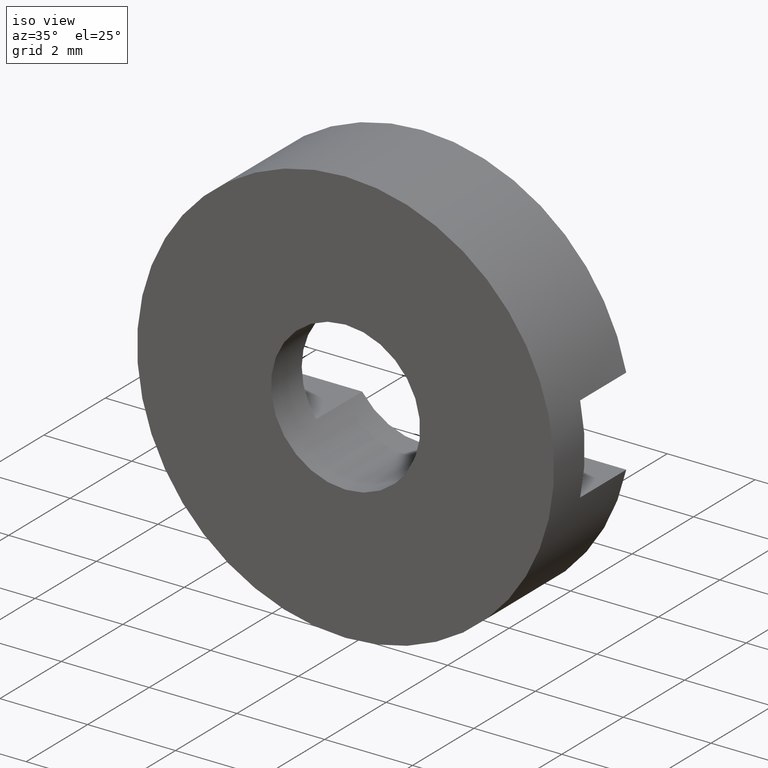
[diagram: clean part render]
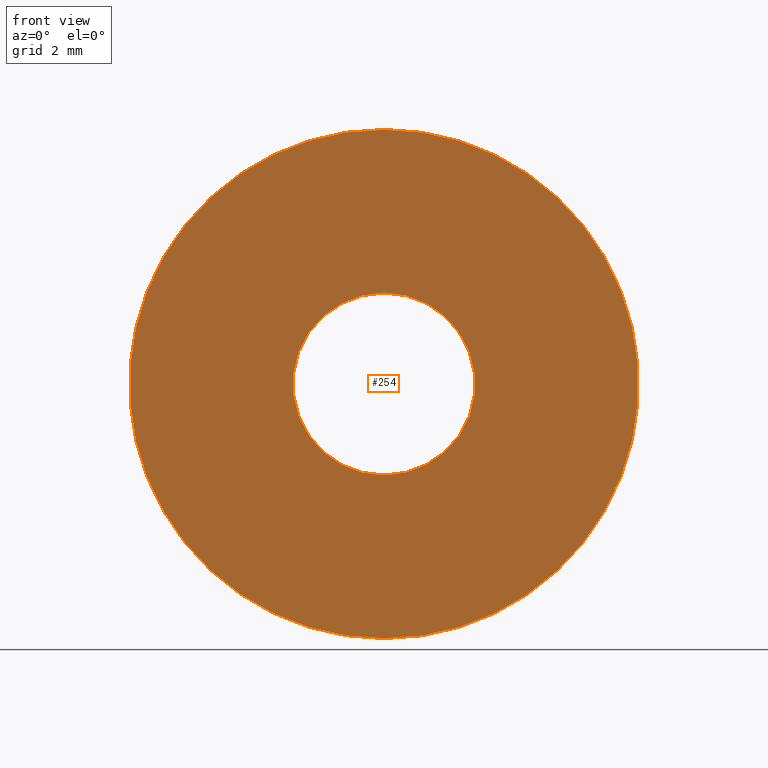
[diagram: tour spotlight — one face highlighted and labeled with its STEP entity id]
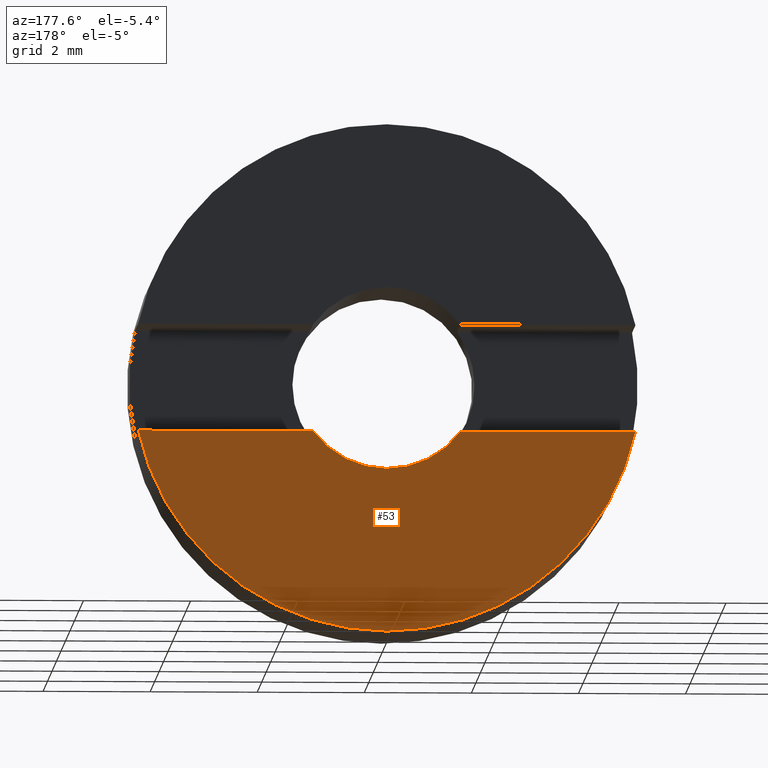
[diagram: tour spotlight — one face highlighted and labeled with its STEP entity id]
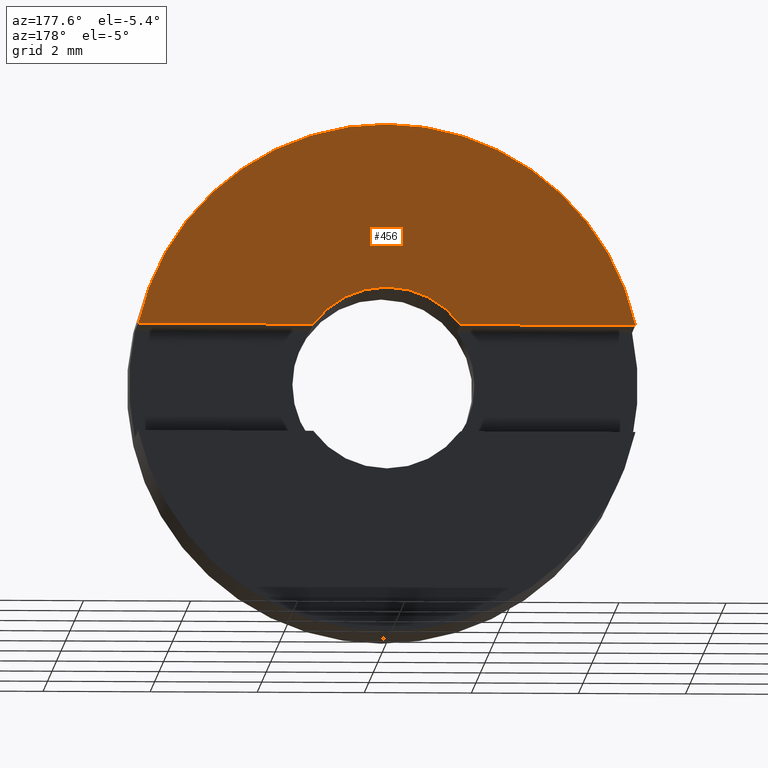
[diagram: tour spotlight — one face highlighted and labeled with its STEP entity id]
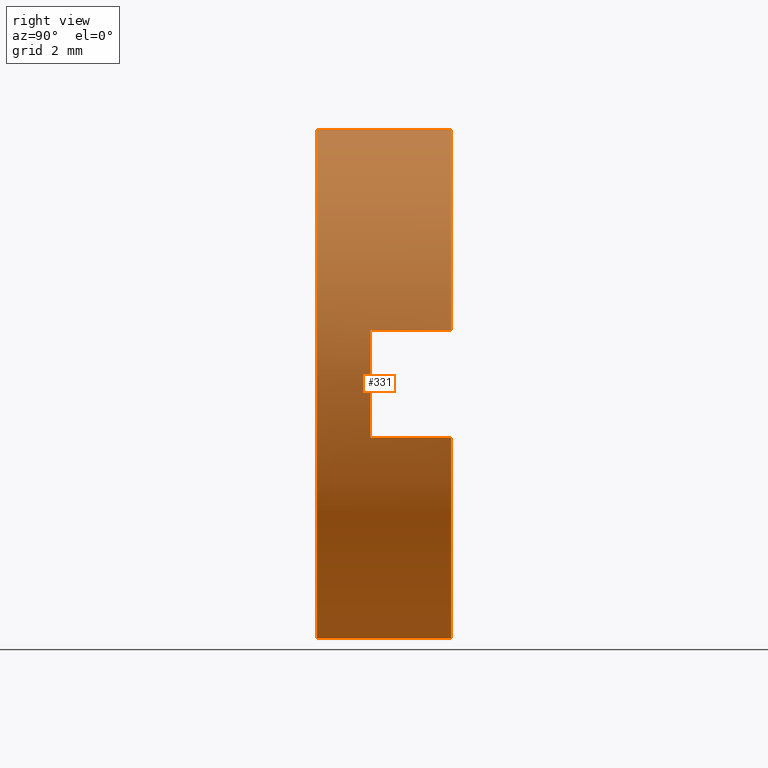
[diagram: tour spotlight — one face highlighted and labeled with its STEP entity id]
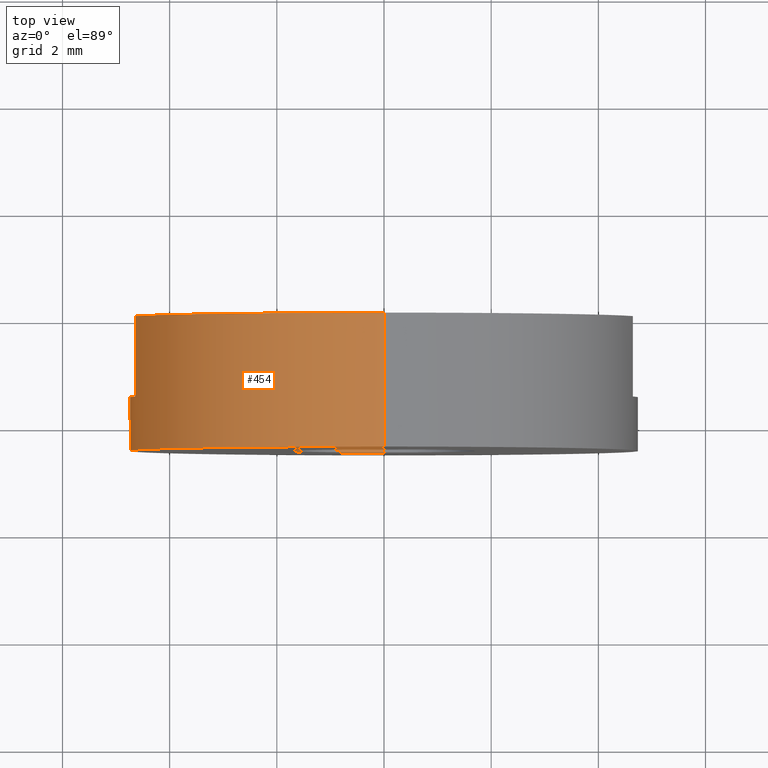
[diagram: tour spotlight — one face highlighted and labeled with its STEP entity id]
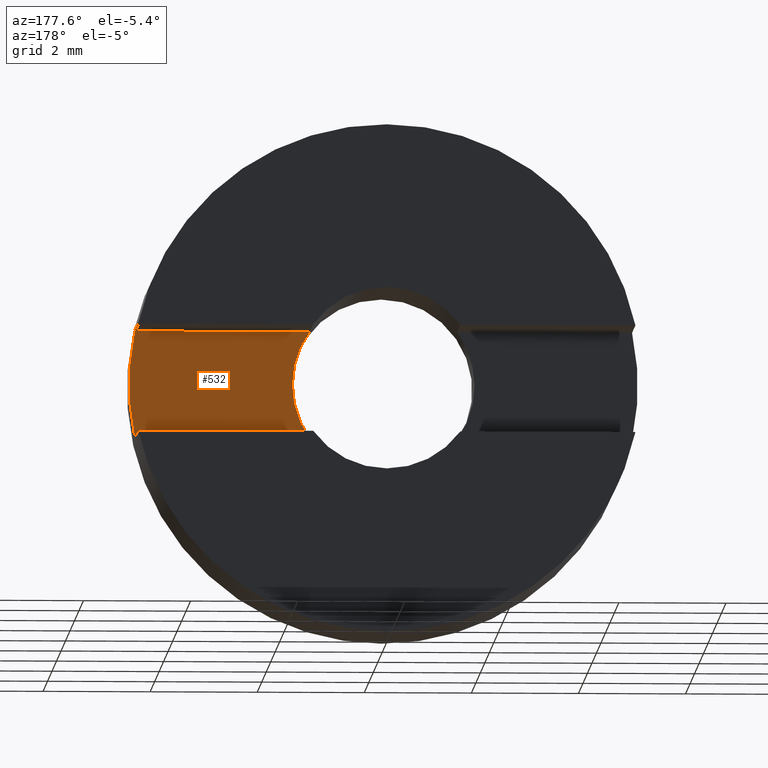
[diagram: tour spotlight — one face highlighted and labeled with its STEP entity id]
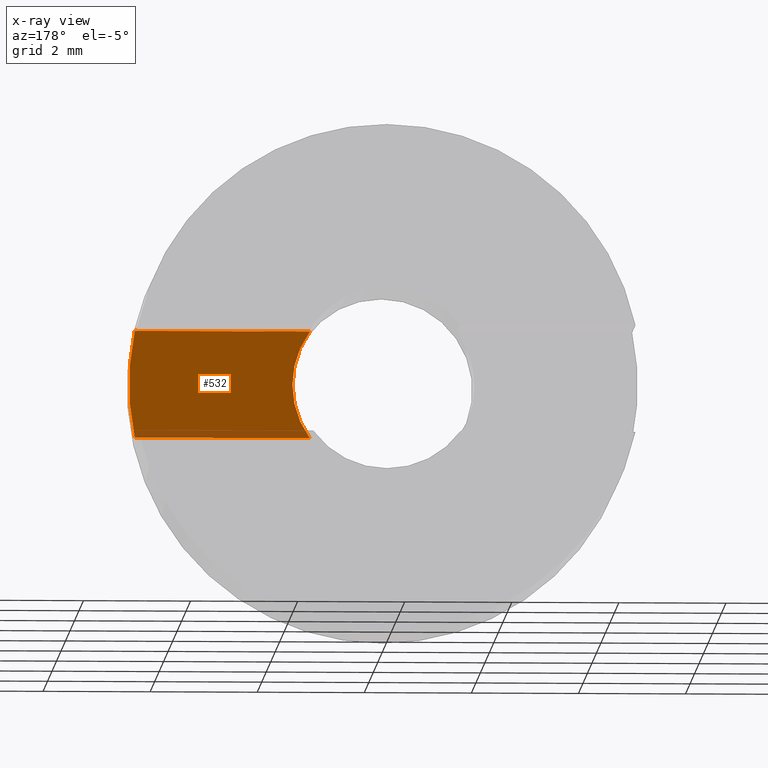
[diagram: x-ray of the same camera — body ghosted, this tour face saturated]
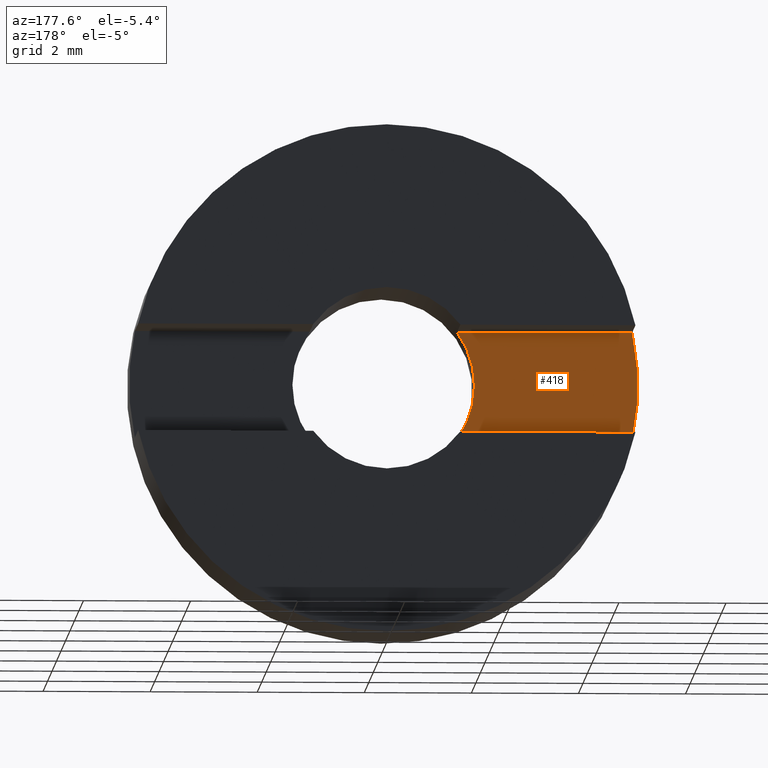
[diagram: tour spotlight — one face highlighted and labeled with its STEP entity id]
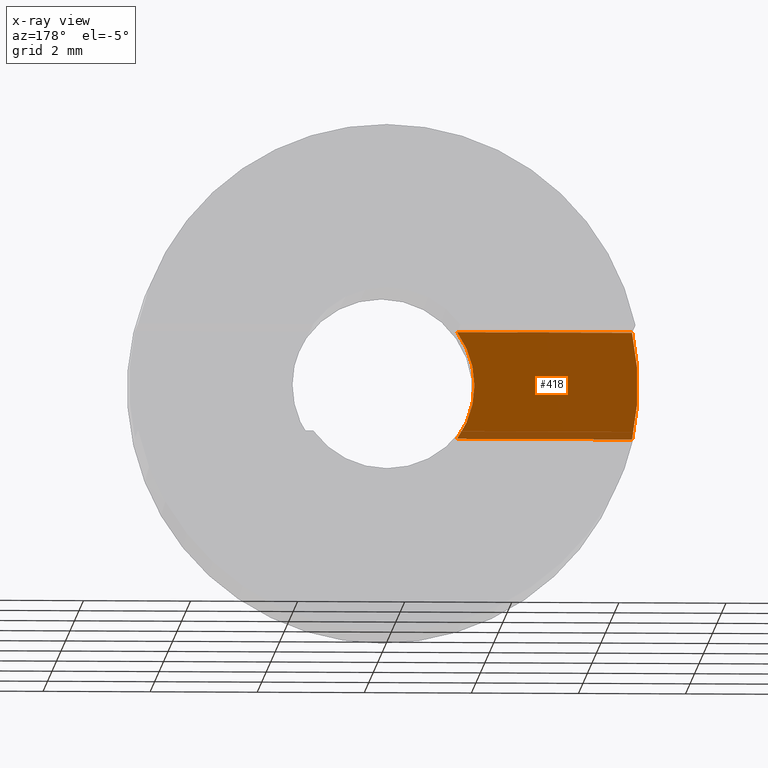
[diagram: x-ray of the same camera — body ghosted, this tour face saturated]
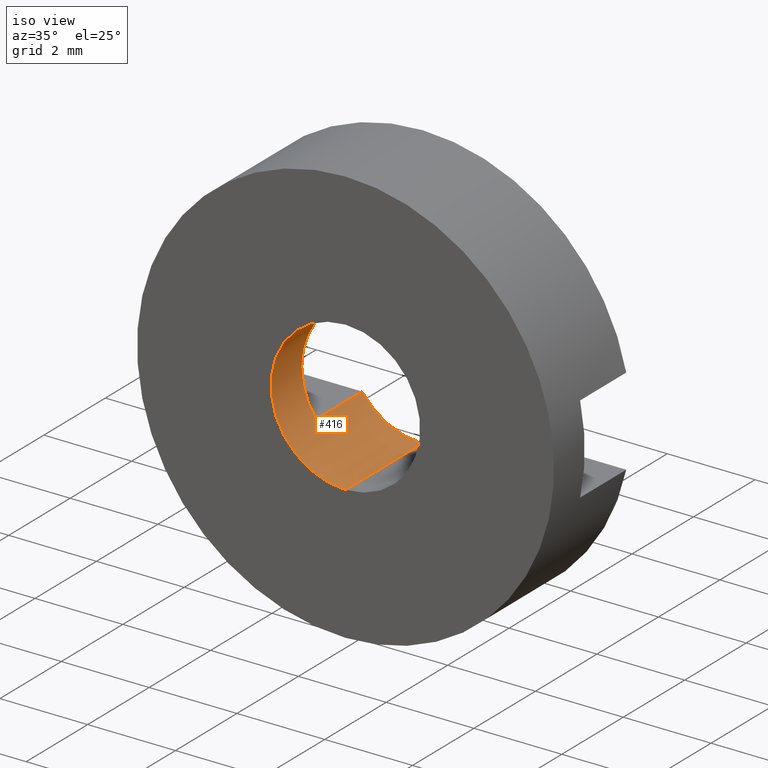
[diagram: tour spotlight — one face highlighted and labeled with its STEP entity id]
A machine part: a face-by-face anatomy tour. The part has 13 B-rep faces; the first image is the clean iso view, then the 8 largest visible faces are spotlighted one at a time (largest first), each with its STEP entity span.

Face 1 — front view, entity #254. In plain terms, the highlighted planar face has unit normal (-0, 1, 0).
Definition (entity closure, byte-faithful):
#9 = AXIS2_PLACEMENT_3D ( 'NONE', #573, #83, #351 ) ;
#31 = AXIS2_PLACEMENT_3D ( 'NONE', #487, #480, #393 ) ;
#75 = CARTESIAN_POINT ( 'NONE',  ( 0.0000000000000000000, -4.464249787179428900, 0.0000000000000000000 ) ) ;
#83 = DIRECTION ( 'NONE',  ( -0.0000000000000000000, 1.000000000000000000, -0.0000000000000000000 ) ) ;
#120 = PLANE ( 'NONE',  #309 ) ;
#126 = VERTEX_POINT ( 'NONE', #432 ) ;
#127 = CARTESIAN_POINT ( 'NONE',  ( 2.081899558550509200E-016, -4.464249787179428900, -1.700000000000007300 ) ) ;
#130 = CIRCLE ( 'NONE', #382, 1.700000000000007300 ) ;
#143 = EDGE_CURVE ( 'NONE', #126, #243, #385, .T. ) ;
#152 = EDGE_CURVE ( 'NONE', #243, #126, #329, .T. ) ;
#153 = ORIENTED_EDGE ( 'NONE', *, *, #143, .F. ) ;
#165 = DIRECTION ( 'NONE',  ( -0.0000000000000000000, 1.000000000000000000, -0.0000000000000000000 ) ) ;
#168 = CARTESIAN_POINT ( 'NONE',  ( 0.0000000000000000000, -4.464249787179428900, 4.750000000000007100 ) ) ;
#193 = VERTEX_POINT ( 'NONE', #127 ) ;
#202 = EDGE_LOOP ( 'NONE', ( #317, #153 ) ) ;
#216 = DIRECTION ( 'NONE',  ( -0.0000000000000000000, 1.000000000000000000, 0.0000000000000000000 ) ) ;
#243 = VERTEX_POINT ( 'NONE', #168 ) ;
#254 = ADVANCED_FACE ( 'NONE', ( #387, #275 ), #120, .F. ) ;
#275 = FACE_BOUND ( 'NONE', #521, .T. ) ;
#280 = ORIENTED_EDGE ( 'NONE', *, *, #522, .T. ) ;
#302 = CARTESIAN_POINT ( 'NONE',  ( 0.0000000000000000000, -4.464249787179428900, 1.700000000000007300 ) ) ;
#307 = VERTEX_POINT ( 'NONE', #302 ) ;
#309 = AXIS2_PLACEMENT_3D ( 'NONE', #483, #216, #531 ) ;
#310 = DIRECTION ( 'NONE',  ( 0.0000000000000000000, 0.0000000000000000000, 1.000000000000000000 ) ) ;
#317 = ORIENTED_EDGE ( 'NONE', *, *, #152, .F. ) ;
#329 = CIRCLE ( 'NONE', #9, 4.750000000000007100 ) ;
#335 = AXIS2_PLACEMENT_3D ( 'NONE', #75, #165, #429 ) ;
#351 = DIRECTION ( 'NONE',  ( 0.0000000000000000000, 0.0000000000000000000, 1.000000000000000000 ) ) ;
#380 = ORIENTED_EDGE ( 'NONE', *, *, #527, .T. ) ;
#382 = AXIS2_PLACEMENT_3D ( 'NONE', #392, #448, #310 ) ;
#385 = CIRCLE ( 'NONE', #335, 4.750000000000007100 ) ;
#387 = FACE_OUTER_BOUND ( 'NONE', #202, .T. ) ;
#392 = CARTESIAN_POINT ( 'NONE',  ( 0.0000000000000000000, -4.464249787179428900, 0.0000000000000000000 ) ) ;
#393 = DIRECTION ( 'NONE',  ( 0.0000000000000000000, 0.0000000000000000000, 1.000000000000000000 ) ) ;
#429 = DIRECTION ( 'NONE',  ( 0.0000000000000000000, 0.0000000000000000000, 1.000000000000000000 ) ) ;
#432 = CARTESIAN_POINT ( 'NONE',  ( 5.817072295949936300E-016, -4.464249787179428900, -4.750000000000007100 ) ) ;
#448 = DIRECTION ( 'NONE',  ( -0.0000000000000000000, 1.000000000000000000, -0.0000000000000000000 ) ) ;
#480 = DIRECTION ( 'NONE',  ( -0.0000000000000000000, 1.000000000000000000, -0.0000000000000000000 ) ) ;
#483 = CARTESIAN_POINT ( 'NONE',  ( 1.700000000000007300, -4.464249787179430700, 0.0000000000000000000 ) ) ;
#487 = CARTESIAN_POINT ( 'NONE',  ( 0.0000000000000000000, -4.464249787179428900, 0.0000000000000000000 ) ) ;
#512 = CIRCLE ( 'NONE', #31, 1.700000000000007300 ) ;
#521 = EDGE_LOOP ( 'NONE', ( #380, #280 ) ) ;
#522 = EDGE_CURVE ( 'NONE', #193, #307, #512, .T. ) ;
#527 = EDGE_CURVE ( 'NONE', #307, #193, #130, .T. ) ;
#531 = DIRECTION ( 'NONE',  ( 0.0000000000000000000, 0.0000000000000000000, 1.000000000000000000 ) ) ;
#573 = CARTESIAN_POINT ( 'NONE',  ( 0.0000000000000000000, -4.464249787179428900, 0.0000000000000000000 ) ) ;

Face 2 — auxiliary view, entity #53. In plain terms, the highlighted planar face has unit normal (0, -1, 0).
Definition (entity closure, byte-faithful):
#10 = VERTEX_POINT ( 'NONE', #476 ) ;
#20 = CARTESIAN_POINT ( 'NONE',  ( -26.85254027261461800, -1.964249787179431300, -1.000000000000000000 ) ) ;
#21 = EDGE_CURVE ( 'NONE', #553, #10, #27, .T. ) ;
#22 = CARTESIAN_POINT ( 'NONE',  ( 2.081899558550509200E-016, -1.964249787179434000, -1.700000000000007300 ) ) ;
#27 = CIRCLE ( 'NONE', #544, 4.750000000000008000 ) ;
#40 = CARTESIAN_POINT ( 'NONE',  ( -26.85254027261461800, -1.964249787179431300, -1.000000000000000000 ) ) ;
#43 = LINE ( 'NONE', #20, #551 ) ;
#46 = DIRECTION ( 'NONE',  ( 0.0000000000000000000, 0.0000000000000000000, 1.000000000000000000 ) ) ;
#53 = ADVANCED_FACE ( 'NONE', ( #312 ), #295, .F. ) ;
#70 = VERTEX_POINT ( 'NONE', #473 ) ;
#73 = VECTOR ( 'NONE', #354, 1000.000000000000000 ) ;
#78 = AXIS2_PLACEMENT_3D ( 'NONE', #438, #264, #46 ) ;
#98 = ORIENTED_EDGE ( 'NONE', *, *, #212, .F. ) ;
#101 = VERTEX_POINT ( 'NONE', #22 ) ;
#114 = EDGE_LOOP ( 'NONE', ( #401, #137, #423, #98, #439, #555 ) ) ;
#137 = ORIENTED_EDGE ( 'NONE', *, *, #289, .T. ) ;
#158 = CARTESIAN_POINT ( 'NONE',  ( 1.700000000000007300, -1.964249787179431300, 0.0000000000000000000 ) ) ;
#189 = AXIS2_PLACEMENT_3D ( 'NONE', #158, #424, #478 ) ;
#212 = EDGE_CURVE ( 'NONE', #101, #70, #348, .T. ) ;
#214 = DIRECTION ( 'NONE',  ( 0.0000000000000000000, 0.0000000000000000000, 1.000000000000000000 ) ) ;
#251 = DIRECTION ( 'NONE',  ( -0.0000000000000000000, 1.000000000000000000, -0.0000000000000000000 ) ) ;
#261 = CIRCLE ( 'NONE', #78, 4.750000000000008000 ) ;
#264 = DIRECTION ( 'NONE',  ( -0.0000000000000000000, 1.000000000000000000, -0.0000000000000000000 ) ) ;
#265 = CARTESIAN_POINT ( 'NONE',  ( 4.643543905251672000, -1.964249787179431300, -1.000000000000000000 ) ) ;
#289 = EDGE_CURVE ( 'NONE', #10, #440, #261, .T. ) ;
#292 = CIRCLE ( 'NONE', #328, 1.700000000000007300 ) ;
#293 = DIRECTION ( 'NONE',  ( 0.0000000000000000000, 0.0000000000000000000, 1.000000000000000000 ) ) ;
#295 = PLANE ( 'NONE',  #189 ) ;
#303 = DIRECTION ( 'NONE',  ( -1.000000000000000000, -0.0000000000000000000, -0.0000000000000000000 ) ) ;
#312 = FACE_OUTER_BOUND ( 'NONE', #114, .T. ) ;
#314 = DIRECTION ( 'NONE',  ( -0.0000000000000000000, 1.000000000000000000, -0.0000000000000000000 ) ) ;
#328 = AXIS2_PLACEMENT_3D ( 'NONE', #443, #314, #450 ) ;
#346 = AXIS2_PLACEMENT_3D ( 'NONE', #537, #576, #214 ) ;
#348 = CIRCLE ( 'NONE', #346, 1.700000000000007300 ) ;
#353 = EDGE_CURVE ( 'NONE', #553, #407, #417, .T. ) ;
#354 = DIRECTION ( 'NONE',  ( -1.000000000000000000, -0.0000000000000000000, -0.0000000000000000000 ) ) ;
#401 = ORIENTED_EDGE ( 'NONE', *, *, #21, .T. ) ;
#407 = VERTEX_POINT ( 'NONE', #446 ) ;
#417 = LINE ( 'NONE', #40, #73 ) ;
#423 = ORIENTED_EDGE ( 'NONE', *, *, #510, .F. ) ;
#424 = DIRECTION ( 'NONE',  ( 0.0000000000000000000, -1.000000000000000000, 0.0000000000000000000 ) ) ;
#438 = CARTESIAN_POINT ( 'NONE',  ( 0.0000000000000000000, -1.964249787179434000, 0.0000000000000000000 ) ) ;
#439 = ORIENTED_EDGE ( 'NONE', *, *, #562, .F. ) ;
#440 = VERTEX_POINT ( 'NONE', #547 ) ;
#443 = CARTESIAN_POINT ( 'NONE',  ( 0.0000000000000000000, -1.964249787179434000, 0.0000000000000000000 ) ) ;
#446 = CARTESIAN_POINT ( 'NONE',  ( 1.374772708486760900, -1.964249787179434000, -0.9999999999999995600 ) ) ;
#450 = DIRECTION ( 'NONE',  ( 0.0000000000000000000, 0.0000000000000000000, 1.000000000000000000 ) ) ;
#473 = CARTESIAN_POINT ( 'NONE',  ( -1.374772708486760900, -1.964249787179434000, -0.9999999999999995600 ) ) ;
#476 = CARTESIAN_POINT ( 'NONE',  ( 5.817072295949937300E-016, -1.964249787179434000, -4.750000000000008000 ) ) ;
#478 = DIRECTION ( 'NONE',  ( 0.0000000000000000000, -0.0000000000000000000, -1.000000000000000000 ) ) ;
#510 = EDGE_CURVE ( 'NONE', #70, #440, #43, .T. ) ;
#524 = CARTESIAN_POINT ( 'NONE',  ( 0.0000000000000000000, -1.964249787179434000, 0.0000000000000000000 ) ) ;
#537 = CARTESIAN_POINT ( 'NONE',  ( 0.0000000000000000000, -1.964249787179434000, 0.0000000000000000000 ) ) ;
#544 = AXIS2_PLACEMENT_3D ( 'NONE', #524, #251, #293 ) ;
#547 = CARTESIAN_POINT ( 'NONE',  ( -4.643543905251693400, -1.964249787179431300, -1.000000000000000000 ) ) ;
#551 = VECTOR ( 'NONE', #303, 1000.000000000000000 ) ;
#553 = VERTEX_POINT ( 'NONE', #265 ) ;
#555 = ORIENTED_EDGE ( 'NONE', *, *, #353, .F. ) ;
#562 = EDGE_CURVE ( 'NONE', #407, #101, #292, .T. ) ;
#576 = DIRECTION ( 'NONE',  ( -0.0000000000000000000, 1.000000000000000000, -0.0000000000000000000 ) ) ;

Face 3 — auxiliary view, entity #456. In plain terms, the highlighted planar face has unit normal (0, -1, 0).
Definition (entity closure, byte-faithful):
#2 = EDGE_CURVE ( 'NONE', #170, #5, #144, .T. ) ;
#5 = VERTEX_POINT ( 'NONE', #381 ) ;
#7 = PLANE ( 'NONE',  #100 ) ;
#39 = CIRCLE ( 'NONE', #471, 1.700000000000007300 ) ;
#66 = CARTESIAN_POINT ( 'NONE',  ( 1.700000000000007300, -1.964249787179431300, 0.0000000000000000000 ) ) ;
#71 = FACE_OUTER_BOUND ( 'NONE', #394, .T. ) ;
#72 = CARTESIAN_POINT ( 'NONE',  ( 0.0000000000000000000, -1.964249787179434000, 0.0000000000000000000 ) ) ;
#100 = AXIS2_PLACEMENT_3D ( 'NONE', #66, #493, #575 ) ;
#128 = AXIS2_PLACEMENT_3D ( 'NONE', #362, #181, #358 ) ;
#140 = DIRECTION ( 'NONE',  ( 1.000000000000000000, 0.0000000000000000000, 0.0000000000000000000 ) ) ;
#144 = CIRCLE ( 'NONE', #267, 4.750000000000008000 ) ;
#160 = CARTESIAN_POINT ( 'NONE',  ( -4.643543905251693400, -1.964249787179431300, 1.000000000000000000 ) ) ;
#163 = VECTOR ( 'NONE', #386, 1000.000000000000000 ) ;
#167 = DIRECTION ( 'NONE',  ( -0.0000000000000000000, 1.000000000000000000, -0.0000000000000000000 ) ) ;
#170 = VERTEX_POINT ( 'NONE', #160 ) ;
#171 = VERTEX_POINT ( 'NONE', #490 ) ;
#181 = DIRECTION ( 'NONE',  ( -0.0000000000000000000, 1.000000000000000000, -0.0000000000000000000 ) ) ;
#198 = EDGE_CURVE ( 'NONE', #170, #256, #211, .T. ) ;
#211 = LINE ( 'NONE', #570, #163 ) ;
#217 = CARTESIAN_POINT ( 'NONE',  ( -1.374772708486760900, -1.964249787179434000, 0.9999999999999995600 ) ) ;
#218 = ORIENTED_EDGE ( 'NONE', *, *, #588, .T. ) ;
#219 = ORIENTED_EDGE ( 'NONE', *, *, #2, .T. ) ;
#222 = VECTOR ( 'NONE', #140, 1000.000000000000000 ) ;
#246 = DIRECTION ( 'NONE',  ( -0.0000000000000000000, 1.000000000000000000, -0.0000000000000000000 ) ) ;
#256 = VERTEX_POINT ( 'NONE', #217 ) ;
#267 = AXIS2_PLACEMENT_3D ( 'NONE', #72, #246, #528 ) ;
#269 = CIRCLE ( 'NONE', #128, 1.700000000000007300 ) ;
#270 = CARTESIAN_POINT ( 'NONE',  ( 0.0000000000000000000, -1.964249787179434000, 0.0000000000000000000 ) ) ;
#271 = DIRECTION ( 'NONE',  ( 0.0000000000000000000, 0.0000000000000000000, 1.000000000000000000 ) ) ;
#278 = CIRCLE ( 'NONE', #279, 4.750000000000008000 ) ;
#279 = AXIS2_PLACEMENT_3D ( 'NONE', #270, #167, #492 ) ;
#285 = ORIENTED_EDGE ( 'NONE', *, *, #322, .F. ) ;
#296 = VERTEX_POINT ( 'NONE', #305 ) ;
#305 = CARTESIAN_POINT ( 'NONE',  ( 4.643543905251672000, -1.964249787179431300, 1.000000000000000000 ) ) ;
#322 = EDGE_CURVE ( 'NONE', #171, #472, #39, .T. ) ;
#358 = DIRECTION ( 'NONE',  ( 0.0000000000000000000, 0.0000000000000000000, 1.000000000000000000 ) ) ;
#362 = CARTESIAN_POINT ( 'NONE',  ( 0.0000000000000000000, -1.964249787179434000, 0.0000000000000000000 ) ) ;
#381 = CARTESIAN_POINT ( 'NONE',  ( 0.0000000000000000000, -1.964249787179434000, 4.750000000000008000 ) ) ;
#386 = DIRECTION ( 'NONE',  ( 1.000000000000000000, 0.0000000000000000000, 0.0000000000000000000 ) ) ;
#394 = EDGE_LOOP ( 'NONE', ( #219, #218, #437, #285, #589, #458 ) ) ;
#406 = DIRECTION ( 'NONE',  ( -0.0000000000000000000, 1.000000000000000000, -0.0000000000000000000 ) ) ;
#437 = ORIENTED_EDGE ( 'NONE', *, *, #571, .F. ) ;
#444 = LINE ( 'NONE', #579, #222 ) ;
#456 = ADVANCED_FACE ( 'NONE', ( #71 ), #7, .F. ) ;
#458 = ORIENTED_EDGE ( 'NONE', *, *, #198, .F. ) ;
#471 = AXIS2_PLACEMENT_3D ( 'NONE', #587, #406, #271 ) ;
#472 = VERTEX_POINT ( 'NONE', #539 ) ;
#490 = CARTESIAN_POINT ( 'NONE',  ( 0.0000000000000000000, -1.964249787179434000, 1.700000000000007300 ) ) ;
#492 = DIRECTION ( 'NONE',  ( 0.0000000000000000000, 0.0000000000000000000, 1.000000000000000000 ) ) ;
#493 = DIRECTION ( 'NONE',  ( 0.0000000000000000000, -1.000000000000000000, 0.0000000000000000000 ) ) ;
#528 = DIRECTION ( 'NONE',  ( 0.0000000000000000000, 0.0000000000000000000, 1.000000000000000000 ) ) ;
#539 = CARTESIAN_POINT ( 'NONE',  ( 1.374772708486760900, -1.964249787179434000, 0.9999999999999995600 ) ) ;
#541 = EDGE_CURVE ( 'NONE', #256, #171, #269, .T. ) ;
#570 = CARTESIAN_POINT ( 'NONE',  ( -26.85254027261461800, -1.964249787179431300, 1.000000000000000000 ) ) ;
#571 = EDGE_CURVE ( 'NONE', #472, #296, #444, .T. ) ;
#575 = DIRECTION ( 'NONE',  ( 0.0000000000000000000, -0.0000000000000000000, -1.000000000000000000 ) ) ;
#579 = CARTESIAN_POINT ( 'NONE',  ( -26.85254027261461800, -1.964249787179431300, 1.000000000000000000 ) ) ;
#587 = CARTESIAN_POINT ( 'NONE',  ( 0.0000000000000000000, -1.964249787179434000, 0.0000000000000000000 ) ) ;
#588 = EDGE_CURVE ( 'NONE', #5, #296, #278, .T. ) ;
#589 = ORIENTED_EDGE ( 'NONE', *, *, #541, .F. ) ;

Face 4 — right view, entity #331. In plain terms, the highlighted cylindrical surface (partial cylindrical patch) has radius 4.75 mm, axis along (-0, 1, -0).
Definition (entity closure, byte-faithful):
#5 = VERTEX_POINT ( 'NONE', #381 ) ;
#9 = AXIS2_PLACEMENT_3D ( 'NONE', #573, #83, #351 ) ;
#10 = VERTEX_POINT ( 'NONE', #476 ) ;
#11 = CARTESIAN_POINT ( 'NONE',  ( 0.0000000000000000000, 56.26084262701361600, 4.750000000000008000 ) ) ;
#14 = DIRECTION ( 'NONE',  ( -0.0000000000000000000, 1.000000000000000000, -0.0000000000000000000 ) ) ;
#21 = EDGE_CURVE ( 'NONE', #553, #10, #27, .T. ) ;
#24 = ORIENTED_EDGE ( 'NONE', *, *, #21, .F. ) ;
#26 = DIRECTION ( 'NONE',  ( -0.0000000000000000000, 1.000000000000000000, -0.0000000000000000000 ) ) ;
#27 = CIRCLE ( 'NONE', #544, 4.750000000000008000 ) ;
#28 = VERTEX_POINT ( 'NONE', #565 ) ;
#36 = CARTESIAN_POINT ( 'NONE',  ( 0.0000000000000000000, 56.26084262701361600, 0.0000000000000000000 ) ) ;
#60 = EDGE_CURVE ( 'NONE', #243, #5, #290, .T. ) ;
#67 = EDGE_CURVE ( 'NONE', #553, #28, #225, .T. ) ;
#77 = CARTESIAN_POINT ( 'NONE',  ( 4.643543905251684500, -3.464249787179428400, 0.9999999999999995600 ) ) ;
#83 = DIRECTION ( 'NONE',  ( -0.0000000000000000000, 1.000000000000000000, -0.0000000000000000000 ) ) ;
#124 = ORIENTED_EDGE ( 'NONE', *, *, #546, .F. ) ;
#126 = VERTEX_POINT ( 'NONE', #432 ) ;
#132 = DIRECTION ( 'NONE',  ( 0.0000000000000000000, 0.0000000000000000000, 1.000000000000000000 ) ) ;
#145 = ORIENTED_EDGE ( 'NONE', *, *, #516, .T. ) ;
#152 = EDGE_CURVE ( 'NONE', #243, #126, #329, .T. ) ;
#159 = ORIENTED_EDGE ( 'NONE', *, *, #588, .F. ) ;
#161 = VECTOR ( 'NONE', #14, 1000.000000000000000 ) ;
#167 = DIRECTION ( 'NONE',  ( -0.0000000000000000000, 1.000000000000000000, -0.0000000000000000000 ) ) ;
#168 = CARTESIAN_POINT ( 'NONE',  ( 0.0000000000000000000, -4.464249787179428900, 4.750000000000007100 ) ) ;
#184 = DIRECTION ( 'NONE',  ( 0.0000000000000000000, 0.0000000000000000000, 1.000000000000000000 ) ) ;
#192 = LINE ( 'NONE', #255, #338 ) ;
#201 = VECTOR ( 'NONE', #266, 1000.000000000000000 ) ;
#203 = CARTESIAN_POINT ( 'NONE',  ( 4.643543905251685400, 56.26084262701361600, -1.000000000000000000 ) ) ;
#225 = LINE ( 'NONE', #203, #286 ) ;
#231 = DIRECTION ( 'NONE',  ( 0.0000000000000000000, 1.000000000000000000, 0.0000000000000000000 ) ) ;
#240 = LINE ( 'NONE', #359, #201 ) ;
#243 = VERTEX_POINT ( 'NONE', #168 ) ;
#248 = AXIS2_PLACEMENT_3D ( 'NONE', #501, #231, #132 ) ;
#251 = DIRECTION ( 'NONE',  ( -0.0000000000000000000, 1.000000000000000000, -0.0000000000000000000 ) ) ;
#255 = CARTESIAN_POINT ( 'NONE',  ( 4.643543905251685400, 56.26084262701361600, 1.000000000000000000 ) ) ;
#265 = CARTESIAN_POINT ( 'NONE',  ( 4.643543905251672000, -1.964249787179431300, -1.000000000000000000 ) ) ;
#266 = DIRECTION ( 'NONE',  ( -0.0000000000000000000, 1.000000000000000000, -0.0000000000000000000 ) ) ;
#270 = CARTESIAN_POINT ( 'NONE',  ( 0.0000000000000000000, -1.964249787179434000, 0.0000000000000000000 ) ) ;
#272 = VERTEX_POINT ( 'NONE', #77 ) ;
#278 = CIRCLE ( 'NONE', #279, 4.750000000000008000 ) ;
#279 = AXIS2_PLACEMENT_3D ( 'NONE', #270, #167, #492 ) ;
#286 = VECTOR ( 'NONE', #564, 1000.000000000000000 ) ;
#290 = LINE ( 'NONE', #11, #161 ) ;
#293 = DIRECTION ( 'NONE',  ( 0.0000000000000000000, 0.0000000000000000000, 1.000000000000000000 ) ) ;
#296 = VERTEX_POINT ( 'NONE', #305 ) ;
#300 = ORIENTED_EDGE ( 'NONE', *, *, #378, .T. ) ;
#301 = ORIENTED_EDGE ( 'NONE', *, *, #60, .F. ) ;
#305 = CARTESIAN_POINT ( 'NONE',  ( 4.643543905251672000, -1.964249787179431300, 1.000000000000000000 ) ) ;
#329 = CIRCLE ( 'NONE', #9, 4.750000000000007100 ) ;
#331 = ADVANCED_FACE ( 'NONE', ( #372 ), #484, .T. ) ;
#338 = VECTOR ( 'NONE', #26, 1000.000000000000000 ) ;
#342 = EDGE_LOOP ( 'NONE', ( #449, #300, #24, #345, #124, #145, #159, #301 ) ) ;
#345 = ORIENTED_EDGE ( 'NONE', *, *, #67, .T. ) ;
#351 = DIRECTION ( 'NONE',  ( 0.0000000000000000000, 0.0000000000000000000, 1.000000000000000000 ) ) ;
#356 = DIRECTION ( 'NONE',  ( -0.0000000000000000000, 1.000000000000000000, -0.0000000000000000000 ) ) ;
#359 = CARTESIAN_POINT ( 'NONE',  ( 5.817072295949937300E-016, 56.26084262701361600, -4.750000000000008000 ) ) ;
#372 = FACE_OUTER_BOUND ( 'NONE', #342, .T. ) ;
#378 = EDGE_CURVE ( 'NONE', #126, #10, #240, .T. ) ;
#381 = CARTESIAN_POINT ( 'NONE',  ( 0.0000000000000000000, -1.964249787179434000, 4.750000000000008000 ) ) ;
#432 = CARTESIAN_POINT ( 'NONE',  ( 5.817072295949936300E-016, -4.464249787179428900, -4.750000000000007100 ) ) ;
#433 = CIRCLE ( 'NONE', #248, 4.750000000000008000 ) ;
#449 = ORIENTED_EDGE ( 'NONE', *, *, #152, .T. ) ;
#476 = CARTESIAN_POINT ( 'NONE',  ( 5.817072295949937300E-016, -1.964249787179434000, -4.750000000000008000 ) ) ;
#484 = CYLINDRICAL_SURFACE ( 'NONE', #506, 4.750000000000008000 ) ;
#492 = DIRECTION ( 'NONE',  ( 0.0000000000000000000, 0.0000000000000000000, 1.000000000000000000 ) ) ;
#501 = CARTESIAN_POINT ( 'NONE',  ( 0.0000000000000000000, -3.464249787179428400, 0.0000000000000000000 ) ) ;
#506 = AXIS2_PLACEMENT_3D ( 'NONE', #36, #356, #184 ) ;
#516 = EDGE_CURVE ( 'NONE', #272, #296, #192, .T. ) ;
#524 = CARTESIAN_POINT ( 'NONE',  ( 0.0000000000000000000, -1.964249787179434000, 0.0000000000000000000 ) ) ;
#544 = AXIS2_PLACEMENT_3D ( 'NONE', #524, #251, #293 ) ;
#546 = EDGE_CURVE ( 'NONE', #272, #28, #433, .T. ) ;
#553 = VERTEX_POINT ( 'NONE', #265 ) ;
#564 = DIRECTION ( 'NONE',  ( 0.0000000000000000000, -1.000000000000000000, 0.0000000000000000000 ) ) ;
#565 = CARTESIAN_POINT ( 'NONE',  ( 4.643543905251684500, -3.464249787179428400, -0.9999999999999995600 ) ) ;
#573 = CARTESIAN_POINT ( 'NONE',  ( 0.0000000000000000000, -4.464249787179428900, 0.0000000000000000000 ) ) ;
#588 = EDGE_CURVE ( 'NONE', #5, #296, #278, .T. ) ;

Face 5 — top view, entity #454. In plain terms, the highlighted cylindrical surface (partial cylindrical patch) has radius 4.75 mm, axis along (-0, 1, -0).
Definition (entity closure, byte-faithful):
#2 = EDGE_CURVE ( 'NONE', #170, #5, #144, .T. ) ;
#5 = VERTEX_POINT ( 'NONE', #381 ) ;
#10 = VERTEX_POINT ( 'NONE', #476 ) ;
#11 = CARTESIAN_POINT ( 'NONE',  ( 0.0000000000000000000, 56.26084262701361600, 4.750000000000008000 ) ) ;
#14 = DIRECTION ( 'NONE',  ( -0.0000000000000000000, 1.000000000000000000, -0.0000000000000000000 ) ) ;
#15 = AXIS2_PLACEMENT_3D ( 'NONE', #86, #182, #330 ) ;
#18 = ORIENTED_EDGE ( 'NONE', *, *, #289, .F. ) ;
#19 = EDGE_CURVE ( 'NONE', #195, #440, #503, .T. ) ;
#46 = DIRECTION ( 'NONE',  ( 0.0000000000000000000, 0.0000000000000000000, 1.000000000000000000 ) ) ;
#60 = EDGE_CURVE ( 'NONE', #243, #5, #290, .T. ) ;
#68 = AXIS2_PLACEMENT_3D ( 'NONE', #395, #172, #580 ) ;
#72 = CARTESIAN_POINT ( 'NONE',  ( 0.0000000000000000000, -1.964249787179434000, 0.0000000000000000000 ) ) ;
#74 = ORIENTED_EDGE ( 'NONE', *, *, #19, .T. ) ;
#75 = CARTESIAN_POINT ( 'NONE',  ( 0.0000000000000000000, -4.464249787179428900, 0.0000000000000000000 ) ) ;
#78 = AXIS2_PLACEMENT_3D ( 'NONE', #438, #264, #46 ) ;
#86 = CARTESIAN_POINT ( 'NONE',  ( 0.0000000000000000000, 56.26084262701361600, 0.0000000000000000000 ) ) ;
#109 = ORIENTED_EDGE ( 'NONE', *, *, #414, .F. ) ;
#126 = VERTEX_POINT ( 'NONE', #432 ) ;
#143 = EDGE_CURVE ( 'NONE', #126, #243, #385, .T. ) ;
#144 = CIRCLE ( 'NONE', #267, 4.750000000000008000 ) ;
#160 = CARTESIAN_POINT ( 'NONE',  ( -4.643543905251693400, -1.964249787179431300, 1.000000000000000000 ) ) ;
#161 = VECTOR ( 'NONE', #14, 1000.000000000000000 ) ;
#165 = DIRECTION ( 'NONE',  ( -0.0000000000000000000, 1.000000000000000000, -0.0000000000000000000 ) ) ;
#168 = CARTESIAN_POINT ( 'NONE',  ( 0.0000000000000000000, -4.464249787179428900, 4.750000000000007100 ) ) ;
#170 = VERTEX_POINT ( 'NONE', #160 ) ;
#172 = DIRECTION ( 'NONE',  ( 0.0000000000000000000, 1.000000000000000000, 0.0000000000000000000 ) ) ;
#182 = DIRECTION ( 'NONE',  ( -0.0000000000000000000, 1.000000000000000000, -0.0000000000000000000 ) ) ;
#187 = LINE ( 'NONE', #427, #463 ) ;
#195 = VERTEX_POINT ( 'NONE', #308 ) ;
#201 = VECTOR ( 'NONE', #266, 1000.000000000000000 ) ;
#208 = FACE_OUTER_BOUND ( 'NONE', #428, .T. ) ;
#228 = VERTEX_POINT ( 'NONE', #306 ) ;
#240 = LINE ( 'NONE', #359, #201 ) ;
#243 = VERTEX_POINT ( 'NONE', #168 ) ;
#246 = DIRECTION ( 'NONE',  ( -0.0000000000000000000, 1.000000000000000000, -0.0000000000000000000 ) ) ;
#257 = VECTOR ( 'NONE', #520, 1000.000000000000000 ) ;
#261 = CIRCLE ( 'NONE', #78, 4.750000000000008000 ) ;
#264 = DIRECTION ( 'NONE',  ( -0.0000000000000000000, 1.000000000000000000, -0.0000000000000000000 ) ) ;
#266 = DIRECTION ( 'NONE',  ( -0.0000000000000000000, 1.000000000000000000, -0.0000000000000000000 ) ) ;
#267 = AXIS2_PLACEMENT_3D ( 'NONE', #72, #246, #528 ) ;
#287 = ORIENTED_EDGE ( 'NONE', *, *, #143, .T. ) ;
#289 = EDGE_CURVE ( 'NONE', #10, #440, #261, .T. ) ;
#290 = LINE ( 'NONE', #11, #161 ) ;
#306 = CARTESIAN_POINT ( 'NONE',  ( -4.643543905251684500, -3.464249787179428400, 0.9999999999999995600 ) ) ;
#308 = CARTESIAN_POINT ( 'NONE',  ( -4.643543905251684500, -3.464249787179428400, -0.9999999999999995600 ) ) ;
#319 = ORIENTED_EDGE ( 'NONE', *, *, #2, .F. ) ;
#330 = DIRECTION ( 'NONE',  ( 0.0000000000000000000, 0.0000000000000000000, 1.000000000000000000 ) ) ;
#335 = AXIS2_PLACEMENT_3D ( 'NONE', #75, #165, #429 ) ;
#340 = ORIENTED_EDGE ( 'NONE', *, *, #378, .F. ) ;
#359 = CARTESIAN_POINT ( 'NONE',  ( 5.817072295949937300E-016, 56.26084262701361600, -4.750000000000008000 ) ) ;
#378 = EDGE_CURVE ( 'NONE', #126, #10, #240, .T. ) ;
#381 = CARTESIAN_POINT ( 'NONE',  ( 0.0000000000000000000, -1.964249787179434000, 4.750000000000008000 ) ) ;
#384 = CIRCLE ( 'NONE', #68, 4.750000000000008000 ) ;
#385 = CIRCLE ( 'NONE', #335, 4.750000000000007100 ) ;
#395 = CARTESIAN_POINT ( 'NONE',  ( 0.0000000000000000000, -3.464249787179428400, 0.0000000000000000000 ) ) ;
#396 = ORIENTED_EDGE ( 'NONE', *, *, #60, .T. ) ;
#414 = EDGE_CURVE ( 'NONE', #195, #228, #384, .T. ) ;
#427 = CARTESIAN_POINT ( 'NONE',  ( -4.643543905251685400, 56.26084262701361600, 1.000000000000000000 ) ) ;
#428 = EDGE_LOOP ( 'NONE', ( #340, #287, #396, #319, #530, #109, #74, #18 ) ) ;
#429 = DIRECTION ( 'NONE',  ( 0.0000000000000000000, 0.0000000000000000000, 1.000000000000000000 ) ) ;
#432 = CARTESIAN_POINT ( 'NONE',  ( 5.817072295949936300E-016, -4.464249787179428900, -4.750000000000007100 ) ) ;
#438 = CARTESIAN_POINT ( 'NONE',  ( 0.0000000000000000000, -1.964249787179434000, 0.0000000000000000000 ) ) ;
#440 = VERTEX_POINT ( 'NONE', #547 ) ;
#454 = ADVANCED_FACE ( 'NONE', ( #208 ), #567, .T. ) ;
#463 = VECTOR ( 'NONE', #574, 1000.000000000000000 ) ;
#476 = CARTESIAN_POINT ( 'NONE',  ( 5.817072295949937300E-016, -1.964249787179434000, -4.750000000000008000 ) ) ;
#503 = LINE ( 'NONE', #517, #257 ) ;
#517 = CARTESIAN_POINT ( 'NONE',  ( -4.643543905251685400, 56.26084262701361600, -1.000000000000000000 ) ) ;
#520 = DIRECTION ( 'NONE',  ( -0.0000000000000000000, 1.000000000000000000, -0.0000000000000000000 ) ) ;
#525 = EDGE_CURVE ( 'NONE', #170, #228, #187, .T. ) ;
#528 = DIRECTION ( 'NONE',  ( 0.0000000000000000000, 0.0000000000000000000, 1.000000000000000000 ) ) ;
#530 = ORIENTED_EDGE ( 'NONE', *, *, #525, .T. ) ;
#547 = CARTESIAN_POINT ( 'NONE',  ( -4.643543905251693400, -1.964249787179431300, -1.000000000000000000 ) ) ;
#567 = CYLINDRICAL_SURFACE ( 'NONE', #15, 4.750000000000008000 ) ;
#574 = DIRECTION ( 'NONE',  ( 0.0000000000000000000, -1.000000000000000000, 0.0000000000000000000 ) ) ;
#580 = DIRECTION ( 'NONE',  ( 0.0000000000000000000, 0.0000000000000000000, 1.000000000000000000 ) ) ;

Face 6 — auxiliary view, entity #532. An x-ray twin of the same camera follows (body ghosted, this face saturated) — the face is partly hidden behind the body. In plain terms, the highlighted planar face has unit normal (0, 1, 0).
Definition (entity closure, byte-faithful):
#16 = EDGE_CURVE ( 'NONE', #545, #57, #154, .T. ) ;
#28 = VERTEX_POINT ( 'NONE', #565 ) ;
#30 = CARTESIAN_POINT ( 'NONE',  ( -26.85254027261461800, -3.464249787179431600, 1.000000000000000000 ) ) ;
#42 = DIRECTION ( 'NONE',  ( 0.0000000000000000000, 1.000000000000000000, 0.0000000000000000000 ) ) ;
#44 = PLANE ( 'NONE',  #409 ) ;
#57 = VERTEX_POINT ( 'NONE', #568 ) ;
#58 = AXIS2_PLACEMENT_3D ( 'NONE', #119, #481, #209 ) ;
#62 = EDGE_CURVE ( 'NONE', #28, #545, #498, .T. ) ;
#77 = CARTESIAN_POINT ( 'NONE',  ( 4.643543905251684500, -3.464249787179428400, 0.9999999999999995600 ) ) ;
#90 = DIRECTION ( 'NONE',  ( 0.0000000000000000000, -0.0000000000000000000, 1.000000000000000000 ) ) ;
#111 = EDGE_CURVE ( 'NONE', #57, #272, #238, .T. ) ;
#119 = CARTESIAN_POINT ( 'NONE',  ( 0.0000000000000000000, -3.464249787179428400, 0.0000000000000000000 ) ) ;
#132 = DIRECTION ( 'NONE',  ( 0.0000000000000000000, 0.0000000000000000000, 1.000000000000000000 ) ) ;
#133 = ORIENTED_EDGE ( 'NONE', *, *, #62, .T. ) ;
#154 = CIRCLE ( 'NONE', #58, 1.700000000000007300 ) ;
#156 = FACE_OUTER_BOUND ( 'NONE', #205, .T. ) ;
#157 = ORIENTED_EDGE ( 'NONE', *, *, #111, .T. ) ;
#197 = VECTOR ( 'NONE', #343, 1000.000000000000000 ) ;
#205 = EDGE_LOOP ( 'NONE', ( #441, #133, #336, #157 ) ) ;
#209 = DIRECTION ( 'NONE',  ( 0.0000000000000000000, 0.0000000000000000000, 1.000000000000000000 ) ) ;
#231 = DIRECTION ( 'NONE',  ( 0.0000000000000000000, 1.000000000000000000, 0.0000000000000000000 ) ) ;
#238 = LINE ( 'NONE', #30, #197 ) ;
#248 = AXIS2_PLACEMENT_3D ( 'NONE', #501, #231, #132 ) ;
#272 = VERTEX_POINT ( 'NONE', #77 ) ;
#273 = CARTESIAN_POINT ( 'NONE',  ( 0.0000000000000000000, -3.464249787179431600, 0.0000000000000000000 ) ) ;
#299 = CARTESIAN_POINT ( 'NONE',  ( -26.85254027261461800, -3.464249787179431600, -1.000000000000000000 ) ) ;
#336 = ORIENTED_EDGE ( 'NONE', *, *, #16, .T. ) ;
#343 = DIRECTION ( 'NONE',  ( 1.000000000000000000, 0.0000000000000000000, 0.0000000000000000000 ) ) ;
#375 = DIRECTION ( 'NONE',  ( -1.000000000000000000, -0.0000000000000000000, -0.0000000000000000000 ) ) ;
#388 = CARTESIAN_POINT ( 'NONE',  ( 1.374772708486760900, -3.464249787179428400, -0.9999999999999995600 ) ) ;
#404 = VECTOR ( 'NONE', #375, 1000.000000000000000 ) ;
#409 = AXIS2_PLACEMENT_3D ( 'NONE', #273, #42, #90 ) ;
#433 = CIRCLE ( 'NONE', #248, 4.750000000000008000 ) ;
#441 = ORIENTED_EDGE ( 'NONE', *, *, #546, .T. ) ;
#481 = DIRECTION ( 'NONE',  ( -0.0000000000000000000, -1.000000000000000000, -0.0000000000000000000 ) ) ;
#498 = LINE ( 'NONE', #299, #404 ) ;
#501 = CARTESIAN_POINT ( 'NONE',  ( 0.0000000000000000000, -3.464249787179428400, 0.0000000000000000000 ) ) ;
#532 = ADVANCED_FACE ( 'NONE', ( #156 ), #44, .T. ) ;
#545 = VERTEX_POINT ( 'NONE', #388 ) ;
#546 = EDGE_CURVE ( 'NONE', #272, #28, #433, .T. ) ;
#565 = CARTESIAN_POINT ( 'NONE',  ( 4.643543905251684500, -3.464249787179428400, -0.9999999999999995600 ) ) ;
#568 = CARTESIAN_POINT ( 'NONE',  ( 1.374772708486760900, -3.464249787179428400, 0.9999999999999995600 ) ) ;

Face 7 — auxiliary view, entity #418. An x-ray twin of the same camera follows (body ghosted, this face saturated) — the face is partly hidden behind the body. In plain terms, the highlighted planar face has unit normal (0, 1, 0).
Definition (entity closure, byte-faithful):
#59 = ORIENTED_EDGE ( 'NONE', *, *, #477, .T. ) ;
#68 = AXIS2_PLACEMENT_3D ( 'NONE', #395, #172, #580 ) ;
#69 = EDGE_LOOP ( 'NONE', ( #125, #59, #107, #582 ) ) ;
#87 = AXIS2_PLACEMENT_3D ( 'NONE', #313, #320, #500 ) ;
#106 = LINE ( 'NONE', #584, #391 ) ;
#107 = ORIENTED_EDGE ( 'NONE', *, *, #136, .T. ) ;
#125 = ORIENTED_EDGE ( 'NONE', *, *, #414, .T. ) ;
#134 = DIRECTION ( 'NONE',  ( -1.000000000000000000, -0.0000000000000000000, -0.0000000000000000000 ) ) ;
#136 = EDGE_CURVE ( 'NONE', #529, #509, #294, .T. ) ;
#166 = DIRECTION ( 'NONE',  ( -0.0000000000000000000, -1.000000000000000000, -0.0000000000000000000 ) ) ;
#172 = DIRECTION ( 'NONE',  ( 0.0000000000000000000, 1.000000000000000000, 0.0000000000000000000 ) ) ;
#175 = LINE ( 'NONE', #341, #397 ) ;
#195 = VERTEX_POINT ( 'NONE', #308 ) ;
#228 = VERTEX_POINT ( 'NONE', #306 ) ;
#259 = DIRECTION ( 'NONE',  ( 1.000000000000000000, 0.0000000000000000000, 0.0000000000000000000 ) ) ;
#268 = CARTESIAN_POINT ( 'NONE',  ( -1.374772708486760900, -3.464249787179428400, 0.9999999999999995600 ) ) ;
#294 = CIRCLE ( 'NONE', #495, 1.700000000000007300 ) ;
#306 = CARTESIAN_POINT ( 'NONE',  ( -4.643543905251684500, -3.464249787179428400, 0.9999999999999995600 ) ) ;
#308 = CARTESIAN_POINT ( 'NONE',  ( -4.643543905251684500, -3.464249787179428400, -0.9999999999999995600 ) ) ;
#313 = CARTESIAN_POINT ( 'NONE',  ( 0.0000000000000000000, -3.464249787179431600, 0.0000000000000000000 ) ) ;
#320 = DIRECTION ( 'NONE',  ( 0.0000000000000000000, 1.000000000000000000, 0.0000000000000000000 ) ) ;
#341 = CARTESIAN_POINT ( 'NONE',  ( -26.85254027261461800, -3.464249787179431600, 1.000000000000000000 ) ) ;
#371 = EDGE_CURVE ( 'NONE', #509, #195, #106, .T. ) ;
#384 = CIRCLE ( 'NONE', #68, 4.750000000000008000 ) ;
#389 = CARTESIAN_POINT ( 'NONE',  ( 0.0000000000000000000, -3.464249787179428400, 0.0000000000000000000 ) ) ;
#391 = VECTOR ( 'NONE', #134, 1000.000000000000000 ) ;
#395 = CARTESIAN_POINT ( 'NONE',  ( 0.0000000000000000000, -3.464249787179428400, 0.0000000000000000000 ) ) ;
#397 = VECTOR ( 'NONE', #259, 1000.000000000000000 ) ;
#402 = PLANE ( 'NONE',  #87 ) ;
#414 = EDGE_CURVE ( 'NONE', #195, #228, #384, .T. ) ;
#418 = ADVANCED_FACE ( 'NONE', ( #535 ), #402, .T. ) ;
#435 = DIRECTION ( 'NONE',  ( 0.0000000000000000000, 0.0000000000000000000, 1.000000000000000000 ) ) ;
#477 = EDGE_CURVE ( 'NONE', #228, #529, #175, .T. ) ;
#486 = CARTESIAN_POINT ( 'NONE',  ( -1.374772708486760900, -3.464249787179428400, -0.9999999999999995600 ) ) ;
#495 = AXIS2_PLACEMENT_3D ( 'NONE', #389, #166, #435 ) ;
#500 = DIRECTION ( 'NONE',  ( 0.0000000000000000000, -0.0000000000000000000, 1.000000000000000000 ) ) ;
#509 = VERTEX_POINT ( 'NONE', #486 ) ;
#529 = VERTEX_POINT ( 'NONE', #268 ) ;
#535 = FACE_OUTER_BOUND ( 'NONE', #69, .T. ) ;
#580 = DIRECTION ( 'NONE',  ( 0.0000000000000000000, 0.0000000000000000000, 1.000000000000000000 ) ) ;
#582 = ORIENTED_EDGE ( 'NONE', *, *, #371, .T. ) ;
#584 = CARTESIAN_POINT ( 'NONE',  ( -26.85254027261461800, -3.464249787179431600, -1.000000000000000000 ) ) ;

Face 8 — iso view, entity #416. In plain terms, the highlighted cylindrical surface (partial cylindrical patch) has radius 1.7 mm, axis along (-0, 1, -0).
Definition (entity closure, byte-faithful):
#13 = VECTOR ( 'NONE', #179, 1000.000000000000000 ) ;
#22 = CARTESIAN_POINT ( 'NONE',  ( 2.081899558550509200E-016, -1.964249787179434000, -1.700000000000007300 ) ) ;
#23 = LINE ( 'NONE', #494, #122 ) ;
#31 = AXIS2_PLACEMENT_3D ( 'NONE', #487, #480, #393 ) ;
#54 = VECTOR ( 'NONE', #554, 1000.000000000000000 ) ;
#65 = LINE ( 'NONE', #92, #13 ) ;
#70 = VERTEX_POINT ( 'NONE', #473 ) ;
#76 = ORIENTED_EDGE ( 'NONE', *, *, #91, .T. ) ;
#80 = VECTOR ( 'NONE', #180, 1000.000000000000000 ) ;
#91 = EDGE_CURVE ( 'NONE', #529, #256, #23, .T. ) ;
#92 = CARTESIAN_POINT ( 'NONE',  ( -1.374772708486760900, 56.26084262701361600, -1.000000000000000000 ) ) ;
#101 = VERTEX_POINT ( 'NONE', #22 ) ;
#113 = ORIENTED_EDGE ( 'NONE', *, *, #560, .T. ) ;
#122 = VECTOR ( 'NONE', #221, 1000.000000000000000 ) ;
#127 = CARTESIAN_POINT ( 'NONE',  ( 2.081899558550509200E-016, -4.464249787179428900, -1.700000000000007300 ) ) ;
#128 = AXIS2_PLACEMENT_3D ( 'NONE', #362, #181, #358 ) ;
#136 = EDGE_CURVE ( 'NONE', #529, #509, #294, .T. ) ;
#166 = DIRECTION ( 'NONE',  ( -0.0000000000000000000, -1.000000000000000000, -0.0000000000000000000 ) ) ;
#171 = VERTEX_POINT ( 'NONE', #490 ) ;
#179 = DIRECTION ( 'NONE',  ( 0.0000000000000000000, -1.000000000000000000, 0.0000000000000000000 ) ) ;
#180 = DIRECTION ( 'NONE',  ( -0.0000000000000000000, 1.000000000000000000, -0.0000000000000000000 ) ) ;
#181 = DIRECTION ( 'NONE',  ( -0.0000000000000000000, 1.000000000000000000, -0.0000000000000000000 ) ) ;
#193 = VERTEX_POINT ( 'NONE', #127 ) ;
#204 = ORIENTED_EDGE ( 'NONE', *, *, #136, .F. ) ;
#206 = ORIENTED_EDGE ( 'NONE', *, *, #212, .T. ) ;
#212 = EDGE_CURVE ( 'NONE', #101, #70, #348, .T. ) ;
#214 = DIRECTION ( 'NONE',  ( 0.0000000000000000000, 0.0000000000000000000, 1.000000000000000000 ) ) ;
#217 = CARTESIAN_POINT ( 'NONE',  ( -1.374772708486760900, -1.964249787179434000, 0.9999999999999995600 ) ) ;
#221 = DIRECTION ( 'NONE',  ( -0.0000000000000000000, 1.000000000000000000, -0.0000000000000000000 ) ) ;
#224 = CARTESIAN_POINT ( 'NONE',  ( 0.0000000000000000000, 56.26084262701361600, 0.0000000000000000000 ) ) ;
#230 = ORIENTED_EDGE ( 'NONE', *, *, #445, .F. ) ;
#249 = CYLINDRICAL_SURFACE ( 'NONE', #536, 1.700000000000007300 ) ;
#256 = VERTEX_POINT ( 'NONE', #217 ) ;
#268 = CARTESIAN_POINT ( 'NONE',  ( -1.374772708486760900, -3.464249787179428400, 0.9999999999999995600 ) ) ;
#269 = CIRCLE ( 'NONE', #128, 1.700000000000007300 ) ;
#294 = CIRCLE ( 'NONE', #495, 1.700000000000007300 ) ;
#302 = CARTESIAN_POINT ( 'NONE',  ( 0.0000000000000000000, -4.464249787179428900, 1.700000000000007300 ) ) ;
#307 = VERTEX_POINT ( 'NONE', #302 ) ;
#327 = LINE ( 'NONE', #502, #80 ) ;
#332 = EDGE_LOOP ( 'NONE', ( #526, #540, #206, #113, #204, #76, #519, #230 ) ) ;
#346 = AXIS2_PLACEMENT_3D ( 'NONE', #537, #576, #214 ) ;
#348 = CIRCLE ( 'NONE', #346, 1.700000000000007300 ) ;
#358 = DIRECTION ( 'NONE',  ( 0.0000000000000000000, 0.0000000000000000000, 1.000000000000000000 ) ) ;
#362 = CARTESIAN_POINT ( 'NONE',  ( 0.0000000000000000000, -1.964249787179434000, 0.0000000000000000000 ) ) ;
#389 = CARTESIAN_POINT ( 'NONE',  ( 0.0000000000000000000, -3.464249787179428400, 0.0000000000000000000 ) ) ;
#393 = DIRECTION ( 'NONE',  ( 0.0000000000000000000, 0.0000000000000000000, 1.000000000000000000 ) ) ;
#398 = EDGE_CURVE ( 'NONE', #193, #101, #327, .T. ) ;
#416 = ADVANCED_FACE ( 'NONE', ( #421 ), #249, .F. ) ;
#421 = FACE_OUTER_BOUND ( 'NONE', #332, .T. ) ;
#435 = DIRECTION ( 'NONE',  ( 0.0000000000000000000, 0.0000000000000000000, 1.000000000000000000 ) ) ;
#445 = EDGE_CURVE ( 'NONE', #307, #171, #475, .T. ) ;
#455 = CARTESIAN_POINT ( 'NONE',  ( 0.0000000000000000000, 56.26084262701361600, 1.700000000000007300 ) ) ;
#473 = CARTESIAN_POINT ( 'NONE',  ( -1.374772708486760900, -1.964249787179434000, -0.9999999999999995600 ) ) ;
#475 = LINE ( 'NONE', #455, #54 ) ;
#480 = DIRECTION ( 'NONE',  ( -0.0000000000000000000, 1.000000000000000000, -0.0000000000000000000 ) ) ;
#486 = CARTESIAN_POINT ( 'NONE',  ( -1.374772708486760900, -3.464249787179428400, -0.9999999999999995600 ) ) ;
#487 = CARTESIAN_POINT ( 'NONE',  ( 0.0000000000000000000, -4.464249787179428900, 0.0000000000000000000 ) ) ;
#490 = CARTESIAN_POINT ( 'NONE',  ( 0.0000000000000000000, -1.964249787179434000, 1.700000000000007300 ) ) ;
#494 = CARTESIAN_POINT ( 'NONE',  ( -1.374772708486760900, 56.26084262701361600, 1.000000000000000000 ) ) ;
#495 = AXIS2_PLACEMENT_3D ( 'NONE', #389, #166, #435 ) ;
#502 = CARTESIAN_POINT ( 'NONE',  ( 2.081899558550509200E-016, 56.26084262701361600, -1.700000000000007300 ) ) ;
#504 = DIRECTION ( 'NONE',  ( 0.0000000000000000000, 0.0000000000000000000, 1.000000000000000000 ) ) ;
#509 = VERTEX_POINT ( 'NONE', #486 ) ;
#512 = CIRCLE ( 'NONE', #31, 1.700000000000007300 ) ;
#519 = ORIENTED_EDGE ( 'NONE', *, *, #541, .T. ) ;
#522 = EDGE_CURVE ( 'NONE', #193, #307, #512, .T. ) ;
#526 = ORIENTED_EDGE ( 'NONE', *, *, #522, .F. ) ;
#529 = VERTEX_POINT ( 'NONE', #268 ) ;
#536 = AXIS2_PLACEMENT_3D ( 'NONE', #224, #542, #504 ) ;
#537 = CARTESIAN_POINT ( 'NONE',  ( 0.0000000000000000000, -1.964249787179434000, 0.0000000000000000000 ) ) ;
#540 = ORIENTED_EDGE ( 'NONE', *, *, #398, .T. ) ;
#541 = EDGE_CURVE ( 'NONE', #256, #171, #269, .T. ) ;
#542 = DIRECTION ( 'NONE',  ( -0.0000000000000000000, 1.000000000000000000, -0.0000000000000000000 ) ) ;
#554 = DIRECTION ( 'NONE',  ( -0.0000000000000000000, 1.000000000000000000, -0.0000000000000000000 ) ) ;
#560 = EDGE_CURVE ( 'NONE', #70, #509, #65, .T. ) ;
#576 = DIRECTION ( 'NONE',  ( -0.0000000000000000000, 1.000000000000000000, -0.0000000000000000000 ) ) ;